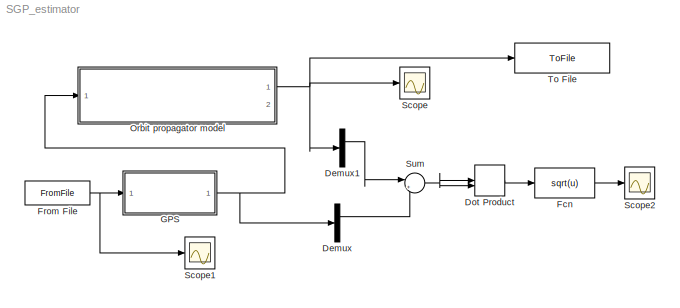
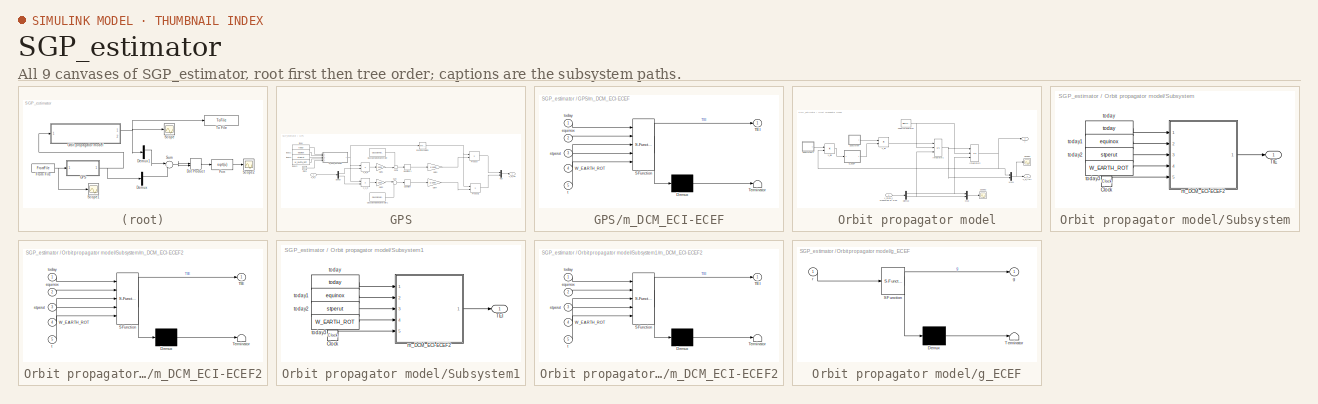
[diagram: thumbnail index - all 9 canvases of the model, root first then tree order]
MODEL SGP_estimator
KIND model
BLOCK [Demux] Demux
  DisplayOption = bar
  Outputs = 2
  Ports = [1, 2]
  SID = 123
BLOCK [Demux] Demux1
  DisplayOption = bar
  Outputs = 2
  Ports = [1, 2]
  SID = 124
BLOCK [DotProduct] Dot Product
  OutDataTypeStr = Inherit: Inherit via internal rule
  SID = 127
BLOCK [Fcn] Fcn
  Expr = sqrt(u)
  SID = 129
BLOCK [FromFile] From File
  FileName = SGP_120k
  SID = 20
  SampleTime = 0
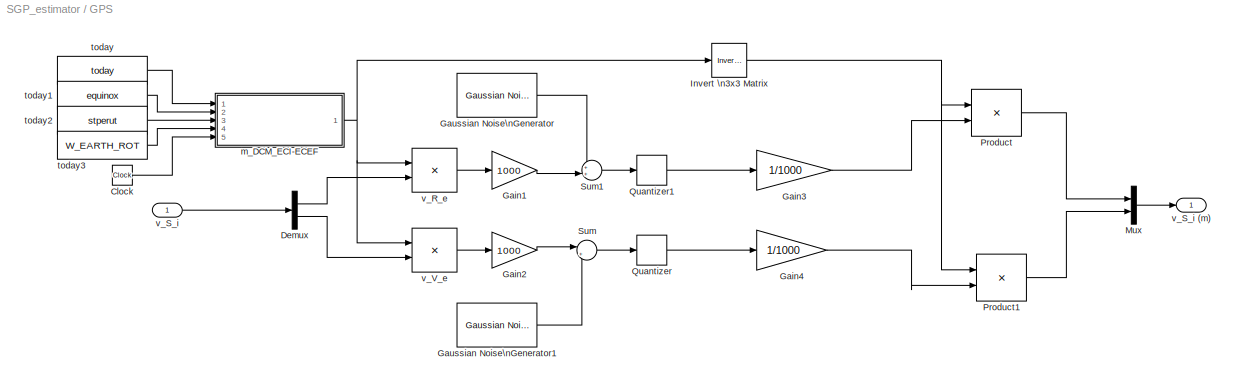
BLOCK [SubSystem] GPS
  FunctionWithSeparateData = off
  MaskHideContents = off
  MinAlgLoopOccurrences = off
  Opaque = off
  Ports = [1, 1]
  PropExecContextOutsideSubsystem = off
  RTWSystemCode = Auto
  RequestExecContextInheritance = off
  SID = 46
BLOCK [Clock] GPS/Clock
  SID = 48
BLOCK [Demux] GPS/Demux
  DisplayOption = bar
  Outputs = 2
  Ports = [1, 2]
  SID = 49
BLOCK [Gain] GPS/Gain1
  Gain = 1000
  OutDataTypeStr = Inherit: Inherit via internal rule
  ParamDataTypeStr = Inherit: Inherit via internal rule
  SID = 50
  SaturateOnIntegerOverflow = off
BLOCK [Gain] GPS/Gain2
  Gain = 1000
  OutDataTypeStr = Inherit: Inherit via internal rule
  ParamDataTypeStr = Inherit: Inherit via internal rule
  SID = 51
  SaturateOnIntegerOverflow = off
BLOCK [Gain] GPS/Gain3
  Gain = 1/1000
  OutDataTypeStr = Inherit: Inherit via internal rule
  ParamDataTypeStr = Inherit: Inherit via internal rule
  SID = 52
  SaturateOnIntegerOverflow = off
BLOCK [Gain] GPS/Gain4
  Gain = 1/1000
  OutDataTypeStr = Inherit: Inherit via internal rule
  ParamDataTypeStr = Inherit: Inherit via internal rule
  SID = 53
  SaturateOnIntegerOverflow = off
BLOCK [Reference] GPS/Gaussian Noise\nGenerator  REF=commnoisgen2/Gaussian Noise\nGenerator
  Ports = [0, 1]
  SID = 54
  SourceBlock = commnoisgen2/Gaussian Noise\nGenerator
  SourceType = Gaussian Noise Generator
  Ts = s_FRAME_SIZE
  d = s_x_GPS_X
  frameBased = off
  m = 0
  orient = off
  outDataType = double
  s = 41
  sampPerFrame = 1
BLOCK [Reference] GPS/Gaussian Noise\nGenerator1  REF=commnoisgen2/Gaussian Noise\nGenerator
  Ports = [0, 1]
  SID = 55
  SourceBlock = commnoisgen2/Gaussian Noise\nGenerator
  SourceType = Gaussian Noise Generator
  Ts = s_FRAME_SIZE
  d = s_x_GPS_V
  frameBased = off
  m = 0
  orient = off
  outDataType = double
  s = 24
  sampPerFrame = 1
BLOCK [Reference] GPS/Invert \n3x3 Matrix  REF=aerolibutil/Invert \n3x3 Matrix
  Ports = [1, 1]
  SID = 56
  SourceBlock = aerolibutil/Invert \n3x3 Matrix
  SourceType = Invert 3x3 Matrix
BLOCK [Mux] GPS/Mux
  DisplayOption = bar
  Inputs = 2
  Ports = [2, 1]
  SID = 57
BLOCK [Product] GPS/Product
  InputSameDT = off
  Multiplication = Matrix(*)
  OutDataTypeStr = Inherit: Inherit via internal rule
  Ports = [2, 1]
  SID = 58
  SaturateOnIntegerOverflow = off
BLOCK [Product] GPS/Product1
  InputSameDT = off
  Multiplication = Matrix(*)
  OutDataTypeStr = Inherit: Inherit via internal rule
  Ports = [2, 1]
  SID = 59
  SaturateOnIntegerOverflow = off
BLOCK [Quantizer] GPS/Quantizer
  QuantizationInterval = 1/(2^31)
  SID = 60
BLOCK [Quantizer] GPS/Quantizer1
  QuantizationInterval = 1/(2^31)
  SID = 61
BLOCK [Sum] GPS/Sum
  IconShape = round
  InputSameDT = off
  Inputs = |++
  OutDataTypeStr = Inherit: Inherit via internal rule
  Ports = [2, 1]
  SID = 62
  SaturateOnIntegerOverflow = off
BLOCK [Sum] GPS/Sum1
  IconShape = round
  InputSameDT = off
  Inputs = ++|
  OutDataTypeStr = Inherit: Inherit via internal rule
  Ports = [2, 1]
  SID = 63
  SaturateOnIntegerOverflow = off
BLOCK [SubSystem] GPS/m_DCM_ECI-ECEF
  ErrorFcn = Stateflow.Translate.translate
  FunctionWithSeparateData = off
  MaskHideContents = off
  MinAlgLoopOccurrences = off
  Opaque = off
  PermitHierarchicalResolution = ExplicitOnly
  Ports = [5, 1]
  PropExecContextOutsideSubsystem = off
  RTWSystemCode = Auto
  RequestExecContextInheritance = off
  SFBlockType = MATLAB Function
  SID = 64
  TreatAsAtomicUnit = on
BLOCK [Demux] GPS/m_DCM_ECI-ECEF/ Demux 
  Outputs = 1
  Ports = [1, 1]
  SID = 64::15
BLOCK [S-Function] GPS/m_DCM_ECI-ECEF/ SFunction 
  EnableBusSupport = on
  FunctionName = sf_sfun
  PortCounts = [5 2]
  Ports = [5, 2]
  SID = 64::14
  Tag = Stateflow S-Function SGP_estimator 56
BLOCK [Terminator] GPS/m_DCM_ECI-ECEF/ Terminator 
  SID = 64::16
BLOCK [Outport] GPS/m_DCM_ECI-ECEF/TEI
  IconDisplay = Port number
  SID = 64::9
BLOCK [Inport] GPS/m_DCM_ECI-ECEF/W_EARTH_ROT
  IconDisplay = Port number
  Port = 4
  SID = 64::4
BLOCK [Inport] GPS/m_DCM_ECI-ECEF/equinox
  IconDisplay = Port number
  Port = 2
  SID = 64::2
BLOCK [Inport] GPS/m_DCM_ECI-ECEF/stperut
  IconDisplay = Port number
  Port = 3
  SID = 64::3
BLOCK [Inport] GPS/m_DCM_ECI-ECEF/t
  IconDisplay = Port number
  Port = 5
  SID = 64::5
BLOCK [Inport] GPS/m_DCM_ECI-ECEF/today
  IconDisplay = Port number
  SID = 64::1
BLOCK [Constant] GPS/today
  SID = 65
  Value = today
BLOCK [Constant] GPS/today1
  SID = 66
  Value = equinox
BLOCK [Constant] GPS/today2
  SID = 67
  Value = stperut
BLOCK [Constant] GPS/today3
  SID = 68
  Value = W_EARTH_ROT
BLOCK [Product] GPS/v_R_e
  InputSameDT = off
  Multiplication = Matrix(*)
  OutDataTypeStr = Inherit: Inherit via internal rule
  Ports = [2, 1]
  SID = 69
  SaturateOnIntegerOverflow = off
BLOCK [Inport] GPS/v_S_i
  IconDisplay = Port number
  SID = 47
BLOCK [Outport] GPS/v_S_i (m)
  IconDisplay = Port number
  SID = 71
BLOCK [Product] GPS/v_V_e
  InputSameDT = off
  Multiplication = Matrix(*)
  OutDataTypeStr = Inherit: Inherit via internal rule
  Ports = [2, 1]
  SID = 70
  SaturateOnIntegerOverflow = off
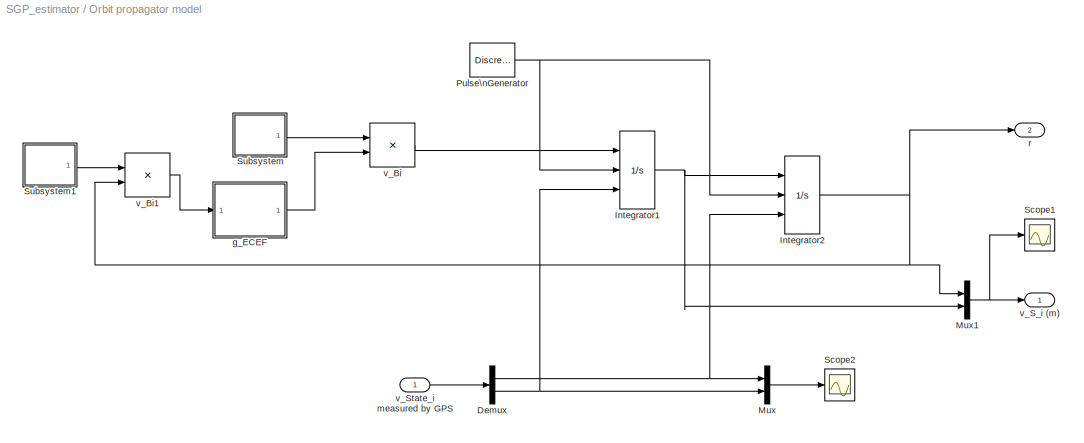
BLOCK [SubSystem] Orbit propagator model
  FunctionWithSeparateData = off
  MaskHideContents = off
  MinAlgLoopOccurrences = off
  Opaque = off
  Ports = [1, 2]
  PropExecContextOutsideSubsystem = off
  RTWSystemCode = Auto
  RequestExecContextInheritance = off
  SID = 21
BLOCK [Demux] Orbit propagator model/Demux
  DisplayOption = bar
  Outputs = 2
  Ports = [1, 2]
  SID = 23
BLOCK [Integrator] Orbit propagator model/Integrator1
  ExternalReset = rising
  InitialConditionSource = external
  Ports = [3, 1]
  SID = 26
BLOCK [Integrator] Orbit propagator model/Integrator2
  ExternalReset = rising
  InitialConditionSource = external
  Ports = [3, 1]
  SID = 27
BLOCK [Mux] Orbit propagator model/Mux
  DisplayOption = bar
  Inputs = 2
  Ports = [2, 1]
  SID = 29
BLOCK [Mux] Orbit propagator model/Mux1
  DisplayOption = bar
  Inputs = 2
  Ports = [2, 1]
  SID = 30
BLOCK [DiscretePulseGenerator] Orbit propagator model/Pulse\nGenerator
  Period = t_reset
  Ports = [0, 1]
  PulseType = Time based
  PulseWidth = 50
  SID = 32
BLOCK [Scope] Orbit propagator model/Scope1
  DataFormat = StructureWithTime
  Floating = off
  LimitDataPoints = off
  NumInputPorts = 1
  Ports = [1]
  SID = 33
  SampleInput = on
  SaveName = ScopeData26
  ShowLegends = off
  ZoomMode = xonly
BLOCK [Scope] Orbit propagator model/Scope2
  DataFormat = StructureWithTime
  Floating = off
  LimitDataPoints = off
  NumInputPorts = 1
  Ports = [1]
  SID = 121
  SampleInput = on
  SaveName = ScopeData4
  ShowLegends = off
  ZoomMode = xonly
BLOCK [SubSystem] Orbit propagator model/Subsystem
  FunctionWithSeparateData = off
  MaskHideContents = off
  MinAlgLoopOccurrences = off
  Opaque = off
  Ports = [0, 1]
  PropExecContextOutsideSubsystem = off
  RTWSystemCode = Auto
  RequestExecContextInheritance = off
  SID = 80
BLOCK [Clock] Orbit propagator model/Subsystem/Clock
  SID = 81
BLOCK [Outport] Orbit propagator model/Subsystem/TIE
  IconDisplay = Port number
  SID = 87
BLOCK [SubSystem] Orbit propagator model/Subsystem/m_DCM_ECI-ECEF2
  ErrorFcn = Stateflow.Translate.translate
  FunctionWithSeparateData = off
  MaskHideContents = off
  MinAlgLoopOccurrences = off
  Opaque = off
  PermitHierarchicalResolution = ExplicitOnly
  Ports = [5, 1]
  PropExecContextOutsideSubsystem = off
  RTWSystemCode = Auto
  RequestExecContextInheritance = off
  SFBlockType = MATLAB Function
  SID = 82
  TreatAsAtomicUnit = on
BLOCK [Demux] Orbit propagator model/Subsystem/m_DCM_ECI-ECEF2/ Demux 
  Outputs = 1
  Ports = [1, 1]
  SID = 82::15
BLOCK [S-Function] Orbit propagator model/Subsystem/m_DCM_ECI-ECEF2/ SFunction 
  EnableBusSupport = on
  FunctionName = sf_sfun
  PortCounts = [5 2]
  Ports = [5, 2]
  SID = 82::14
  Tag = Stateflow S-Function SGP_estimator 14
BLOCK [Terminator] Orbit propagator model/Subsystem/m_DCM_ECI-ECEF2/ Terminator 
  SID = 82::16
BLOCK [Outport] Orbit propagator model/Subsystem/m_DCM_ECI-ECEF2/TIE
  IconDisplay = Port number
  SID = 82::9
BLOCK [Inport] Orbit propagator model/Subsystem/m_DCM_ECI-ECEF2/W_EARTH_ROT
  IconDisplay = Port number
  Port = 4
  SID = 82::4
BLOCK [Inport] Orbit propagator model/Subsystem/m_DCM_ECI-ECEF2/equinox
  IconDisplay = Port number
  Port = 2
  SID = 82::2
BLOCK [Inport] Orbit propagator model/Subsystem/m_DCM_ECI-ECEF2/stperut
  IconDisplay = Port number
  Port = 3
  SID = 82::3
BLOCK [Inport] Orbit propagator model/Subsystem/m_DCM_ECI-ECEF2/t
  IconDisplay = Port number
  Port = 5
  SID = 82::5
BLOCK [Inport] Orbit propagator model/Subsystem/m_DCM_ECI-ECEF2/today
  IconDisplay = Port number
  SID = 82::1
BLOCK [Constant] Orbit propagator model/Subsystem/today
  SID = 83
  Value = today
BLOCK [Constant] Orbit propagator model/Subsystem/today1
  SID = 84
  Value = equinox
BLOCK [Constant] Orbit propagator model/Subsystem/today2
  SID = 85
  Value = stperut
BLOCK [Constant] Orbit propagator model/Subsystem/today3
  SID = 86
  Value = W_EARTH_ROT
BLOCK [SubSystem] Orbit propagator model/Subsystem1
  FunctionWithSeparateData = off
  MaskHideContents = off
  MinAlgLoopOccurrences = off
  Opaque = off
  Ports = [0, 1]
  PropExecContextOutsideSubsystem = off
  RTWSystemCode = Auto
  RequestExecContextInheritance = off
  SID = 98
BLOCK [Clock] Orbit propagator model/Subsystem1/Clock
  SID = 99
BLOCK [Outport] Orbit propagator model/Subsystem1/TEI
  IconDisplay = Port number
  SID = 105
BLOCK [SubSystem] Orbit propagator model/Subsystem1/m_DCM_ECI-ECEF2
  ErrorFcn = Stateflow.Translate.translate
  FunctionWithSeparateData = off
  MaskHideContents = off
  MinAlgLoopOccurrences = off
  Opaque = off
  PermitHierarchicalResolution = ExplicitOnly
  Ports = [5, 1]
  PropExecContextOutsideSubsystem = off
  RTWSystemCode = Auto
  RequestExecContextInheritance = off
  SFBlockType = MATLAB Function
  SID = 100
  TreatAsAtomicUnit = on
BLOCK [Demux] Orbit propagator model/Subsystem1/m_DCM_ECI-ECEF2/ Demux 
  Outputs = 1
  Ports = [1, 1]
  SID = 100::15
BLOCK [S-Function] Orbit propagator model/Subsystem1/m_DCM_ECI-ECEF2/ SFunction 
  EnableBusSupport = on
  FunctionName = sf_sfun
  PortCounts = [5 2]
  Ports = [5, 2]
  SID = 100::14
  Tag = Stateflow S-Function SGP_estimator 1
BLOCK [Terminator] Orbit propagator model/Subsystem1/m_DCM_ECI-ECEF2/ Terminator 
  SID = 100::16
BLOCK [Outport] Orbit propagator model/Subsystem1/m_DCM_ECI-ECEF2/TEI
  IconDisplay = Port number
  SID = 100::9
BLOCK [Inport] Orbit propagator model/Subsystem1/m_DCM_ECI-ECEF2/W_EARTH_ROT
  IconDisplay = Port number
  Port = 4
  SID = 100::4
BLOCK [Inport] Orbit propagator model/Subsystem1/m_DCM_ECI-ECEF2/equinox
  IconDisplay = Port number
  Port = 2
  SID = 100::2
BLOCK [Inport] Orbit propagator model/Subsystem1/m_DCM_ECI-ECEF2/stperut
  IconDisplay = Port number
  Port = 3
  SID = 100::3
BLOCK [Inport] Orbit propagator model/Subsystem1/m_DCM_ECI-ECEF2/t
  IconDisplay = Port number
  Port = 5
  SID = 100::5
BLOCK [Inport] Orbit propagator model/Subsystem1/m_DCM_ECI-ECEF2/today
  IconDisplay = Port number
  SID = 100::1
BLOCK [Constant] Orbit propagator model/Subsystem1/today
  SID = 101
  Value = today
BLOCK [Constant] Orbit propagator model/Subsystem1/today1
  SID = 102
  Value = equinox
BLOCK [Constant] Orbit propagator model/Subsystem1/today2
  SID = 103
  Value = stperut
BLOCK [Constant] Orbit propagator model/Subsystem1/today3
  SID = 104
  Value = W_EARTH_ROT
BLOCK [SubSystem] Orbit propagator model/g_ECEF
  ErrorFcn = Stateflow.Translate.translate
  FunctionWithSeparateData = off
  MaskHideContents = off
  MinAlgLoopOccurrences = off
  Opaque = off
  PermitHierarchicalResolution = ExplicitOnly
  Ports = [1, 1]
  PropExecContextOutsideSubsystem = off
  RTWSystemCode = Auto
  RequestExecContextInheritance = off
  SFBlockType = MATLAB Function
  SID = 78
  TreatAsAtomicUnit = on
BLOCK [Demux] Orbit propagator model/g_ECEF/ Demux 
  Outputs = 1
  Ports = [1, 1]
  SID = 78::14
BLOCK [S-Function] Orbit propagator model/g_ECEF/ SFunction 
  EnableBusSupport = on
  FunctionName = sf_sfun
  Parameters = mu
  PortCounts = [1 2]
  Ports = [1, 2]
  SID = 78::13
  Tag = Stateflow S-Function SGP_estimator 2
BLOCK [Terminator] Orbit propagator model/g_ECEF/ Terminator 
  SID = 78::15
BLOCK [Outport] Orbit propagator model/g_ECEF/g
  IconDisplay = Port number
  SID = 78::5
BLOCK [Inport] Orbit propagator model/g_ECEF/r
  IconDisplay = Port number
  SID = 78::1
BLOCK [Outport] Orbit propagator model/r
  IconDisplay = Port number
  Port = 2
  SID = 91
BLOCK [Product] Orbit propagator model/v_Bi
  InputSameDT = off
  Multiplication = Matrix(*)
  OutDataTypeStr = Inherit: Inherit via internal rule
  Ports = [2, 1]
  SID = 88
  SaturateOnIntegerOverflow = off
BLOCK [Product] Orbit propagator model/v_Bi1
  InputSameDT = off
  Multiplication = Matrix(*)
  OutDataTypeStr = Inherit: Inherit via internal rule
  Ports = [2, 1]
  SID = 97
  SaturateOnIntegerOverflow = off
BLOCK [Outport] Orbit propagator model/v_S_i (m)
  IconDisplay = Port number
  SID = 45
BLOCK [Inport] Orbit propagator model/v_State_i measured by GPS
  IconDisplay = Port number
  SID = 22
BLOCK [Scope] Scope
  DataFormat = StructureWithTime
  Floating = off
  LimitDataPoints = off
  NumInputPorts = 1
  Ports = [1]
  SID = 77
  SampleTime = 0
  ShowLegends = off
  YMax = 8e+006
  YMin = -4e+006
  ZoomMode = yonly
BLOCK [Scope] Scope1
  DataFormat = StructureWithTime
  Floating = off
  LimitDataPoints = off
  NumInputPorts = 1
  Ports = [1]
  SID = 89
  SampleTime = 0
  SaveName = ScopeData1
  ShowLegends = off
  ZoomMode = yonly
BLOCK [Scope] Scope2
  DataFormat = StructureWithTime
  Floating = off
  LimitDataPoints = off
  NumInputPorts = 1
  Ports = [1]
  SID = 126
  SampleTime = 0
  SaveName = ScopeData2
  ShowLegends = off
  YMax = 575000
  YMin = 50000
  ZoomMode = xonly
BLOCK [Sum] Sum
  IconShape = round
  InputSameDT = off
  Inputs = |+-
  OutDataTypeStr = Inherit: Inherit via internal rule
  Ports = [2, 1]
  SID = 125
  SaturateOnIntegerOverflow = off
BLOCK [ToFile] To File
  Filename = SGP_est_120k
  MatrixName = SGP_est_120k
  Ports = [1]
  SID = 130
LINE Demux1:1 -> Sum:1
LINE Demux:1 -> Sum:2
LINE Dot Product:1 -> Fcn:1
LINE Fcn:1 -> Scope2:1
NET From File:1 -> GPS:1, Scope1:1
LINE GPS/Clock:1 -> GPS/m_DCM_ECI-ECEF:5
LINE GPS/Demux:1 -> GPS/v_R_e:2
LINE GPS/Demux:2 -> GPS/v_V_e:2
LINE GPS/Gain1:1 -> GPS/Sum1:2
LINE GPS/Gain2:1 -> GPS/Sum:1
LINE GPS/Gain3:1 -> GPS/Product:2
LINE GPS/Gain4:1 -> GPS/Product1:2
LINE GPS/Gaussian Noise\nGenerator1:1 -> GPS/Sum:2
LINE GPS/Gaussian Noise\nGenerator:1 -> GPS/Sum1:1
NET GPS/Invert \n3x3 Matrix:1 -> GPS/Product1:1, GPS/Product:1
LINE GPS/Mux:1 -> GPS/v_S_i (m):1
LINE GPS/Product1:1 -> GPS/Mux:2
LINE GPS/Product:1 -> GPS/Mux:1
LINE GPS/Quantizer1:1 -> GPS/Gain3:1
LINE GPS/Quantizer:1 -> GPS/Gain4:1
LINE GPS/Sum1:1 -> GPS/Quantizer1:1
LINE GPS/Sum:1 -> GPS/Quantizer:1
LINE GPS/m_DCM_ECI-ECEF/ Demux :1 -> GPS/m_DCM_ECI-ECEF/ Terminator :1
LINE GPS/m_DCM_ECI-ECEF/ SFunction :1 -> GPS/m_DCM_ECI-ECEF/ Demux :1
LINE GPS/m_DCM_ECI-ECEF/ SFunction :2 -> GPS/m_DCM_ECI-ECEF/TEI:1
LINE GPS/m_DCM_ECI-ECEF/W_EARTH_ROT:1 -> GPS/m_DCM_ECI-ECEF/ SFunction :4
LINE GPS/m_DCM_ECI-ECEF/equinox:1 -> GPS/m_DCM_ECI-ECEF/ SFunction :2
LINE GPS/m_DCM_ECI-ECEF/stperut:1 -> GPS/m_DCM_ECI-ECEF/ SFunction :3
LINE GPS/m_DCM_ECI-ECEF/t:1 -> GPS/m_DCM_ECI-ECEF/ SFunction :5
LINE GPS/m_DCM_ECI-ECEF/today:1 -> GPS/m_DCM_ECI-ECEF/ SFunction :1
NET GPS/m_DCM_ECI-ECEF:1 -> GPS/Invert \n3x3 Matrix:1, GPS/v_R_e:1, GPS/v_V_e:1
LINE GPS/today1:1 -> GPS/m_DCM_ECI-ECEF:2
LINE GPS/today2:1 -> GPS/m_DCM_ECI-ECEF:3
LINE GPS/today3:1 -> GPS/m_DCM_ECI-ECEF:4
LINE GPS/today:1 -> GPS/m_DCM_ECI-ECEF:1
LINE GPS/v_R_e:1 -> GPS/Gain1:1
LINE GPS/v_S_i:1 -> GPS/Demux:1
LINE GPS/v_V_e:1 -> GPS/Gain2:1
NET GPS:1 -> Demux:1, Orbit propagator model:1
NET Orbit propagator model/Demux:1 -> Orbit propagator model/Integrator2:3, Orbit propagator model/Mux:1
NET Orbit propagator model/Demux:2 -> Orbit propagator model/Integrator1:3, Orbit propagator model/Mux:2
NET Orbit propagator model/Integrator1:1 -> Orbit propagator model/Integrator2:1, Orbit propagator model/Mux1:2
NET Orbit propagator model/Integrator2:1 -> Orbit propagator model/Mux1:1, Orbit propagator model/r:1, Orbit propagator model/v_Bi1:2
NET Orbit propagator model/Mux1:1 -> Orbit propagator model/Scope1:1, Orbit propagator model/v_S_i (m):1
LINE Orbit propagator model/Mux:1 -> Orbit propagator model/Scope2:1
NET Orbit propagator model/Pulse\nGenerator:1 -> Orbit propagator model/Integrator1:2, Orbit propagator model/Integrator2:2
LINE Orbit propagator model/Subsystem/Clock:1 -> Orbit propagator model/Subsystem/m_DCM_ECI-ECEF2:5
LINE Orbit propagator model/Subsystem/m_DCM_ECI-ECEF2/ Demux :1 -> Orbit propagator model/Subsystem/m_DCM_ECI-ECEF2/ Terminator :1
LINE Orbit propagator model/Subsystem/m_DCM_ECI-ECEF2/ SFunction :1 -> Orbit propagator model/Subsystem/m_DCM_ECI-ECEF2/ Demux :1
LINE Orbit propagator model/Subsystem/m_DCM_ECI-ECEF2/ SFunction :2 -> Orbit propagator model/Subsystem/m_DCM_ECI-ECEF2/TIE:1
LINE Orbit propagator model/Subsystem/m_DCM_ECI-ECEF2/W_EARTH_ROT:1 -> Orbit propagator model/Subsystem/m_DCM_ECI-ECEF2/ SFunction :4
LINE Orbit propagator model/Subsystem/m_DCM_ECI-ECEF2/equinox:1 -> Orbit propagator model/Subsystem/m_DCM_ECI-ECEF2/ SFunction :2
LINE Orbit propagator model/Subsystem/m_DCM_ECI-ECEF2/stperut:1 -> Orbit propagator model/Subsystem/m_DCM_ECI-ECEF2/ SFunction :3
LINE Orbit propagator model/Subsystem/m_DCM_ECI-ECEF2/t:1 -> Orbit propagator model/Subsystem/m_DCM_ECI-ECEF2/ SFunction :5
LINE Orbit propagator model/Subsystem/m_DCM_ECI-ECEF2/today:1 -> Orbit propagator model/Subsystem/m_DCM_ECI-ECEF2/ SFunction :1
LINE Orbit propagator model/Subsystem/m_DCM_ECI-ECEF2:1 -> Orbit propagator model/Subsystem/TIE:1
LINE Orbit propagator model/Subsystem/today1:1 -> Orbit propagator model/Subsystem/m_DCM_ECI-ECEF2:2
LINE Orbit propagator model/Subsystem/today2:1 -> Orbit propagator model/Subsystem/m_DCM_ECI-ECEF2:3
LINE Orbit propagator model/Subsystem/today3:1 -> Orbit propagator model/Subsystem/m_DCM_ECI-ECEF2:4
LINE Orbit propagator model/Subsystem/today:1 -> Orbit propagator model/Subsystem/m_DCM_ECI-ECEF2:1
LINE Orbit propagator model/Subsystem1/Clock:1 -> Orbit propagator model/Subsystem1/m_DCM_ECI-ECEF2:5
LINE Orbit propagator model/Subsystem1/m_DCM_ECI-ECEF2/ Demux :1 -> Orbit propagator model/Subsystem1/m_DCM_ECI-ECEF2/ Terminator :1
LINE Orbit propagator model/Subsystem1/m_DCM_ECI-ECEF2/ SFunction :1 -> Orbit propagator model/Subsystem1/m_DCM_ECI-ECEF2/ Demux :1
LINE Orbit propagator model/Subsystem1/m_DCM_ECI-ECEF2/ SFunction :2 -> Orbit propagator model/Subsystem1/m_DCM_ECI-ECEF2/TEI:1
LINE Orbit propagator model/Subsystem1/m_DCM_ECI-ECEF2/W_EARTH_ROT:1 -> Orbit propagator model/Subsystem1/m_DCM_ECI-ECEF2/ SFunction :4
LINE Orbit propagator model/Subsystem1/m_DCM_ECI-ECEF2/equinox:1 -> Orbit propagator model/Subsystem1/m_DCM_ECI-ECEF2/ SFunction :2
LINE Orbit propagator model/Subsystem1/m_DCM_ECI-ECEF2/stperut:1 -> Orbit propagator model/Subsystem1/m_DCM_ECI-ECEF2/ SFunction :3
LINE Orbit propagator model/Subsystem1/m_DCM_ECI-ECEF2/t:1 -> Orbit propagator model/Subsystem1/m_DCM_ECI-ECEF2/ SFunction :5
LINE Orbit propagator model/Subsystem1/m_DCM_ECI-ECEF2/today:1 -> Orbit propagator model/Subsystem1/m_DCM_ECI-ECEF2/ SFunction :1
LINE Orbit propagator model/Subsystem1/m_DCM_ECI-ECEF2:1 -> Orbit propagator model/Subsystem1/TEI:1
LINE Orbit propagator model/Subsystem1/today1:1 -> Orbit propagator model/Subsystem1/m_DCM_ECI-ECEF2:2
LINE Orbit propagator model/Subsystem1/today2:1 -> Orbit propagator model/Subsystem1/m_DCM_ECI-ECEF2:3
LINE Orbit propagator model/Subsystem1/today3:1 -> Orbit propagator model/Subsystem1/m_DCM_ECI-ECEF2:4
LINE Orbit propagator model/Subsystem1/today:1 -> Orbit propagator model/Subsystem1/m_DCM_ECI-ECEF2:1
LINE Orbit propagator model/Subsystem1:1 -> Orbit propagator model/v_Bi1:1
LINE Orbit propagator model/Subsystem:1 -> Orbit propagator model/v_Bi:1
LINE Orbit propagator model/g_ECEF/ Demux :1 -> Orbit propagator model/g_ECEF/ Terminator :1
LINE Orbit propagator model/g_ECEF/ SFunction :1 -> Orbit propagator model/g_ECEF/ Demux :1
LINE Orbit propagator model/g_ECEF/ SFunction :2 -> Orbit propagator model/g_ECEF/g:1
LINE Orbit propagator model/g_ECEF/r:1 -> Orbit propagator model/g_ECEF/ SFunction :1
LINE Orbit propagator model/g_ECEF:1 -> Orbit propagator model/v_Bi:2
LINE Orbit propagator model/v_Bi1:1 -> Orbit propagator model/g_ECEF:1
LINE Orbit propagator model/v_Bi:1 -> Orbit propagator model/Integrator1:1
LINE Orbit propagator model/v_State_i measured by GPS:1 -> Orbit propagator model/Demux:1
NET Orbit propagator model:1 -> Demux1:1, Scope:1, To File:1
NET Sum:1 -> Dot Product:1, Dot Product:2
note: NET lines group one-source signal fan-out (src -> all destinations, sorted); 1:1 wires keep LINE
CHART Orbit propagator model/Subsystem1/m_DCM_ECI-ECEF2 states=1 transitions=1
  STATE_LABEL 'eML_blk_kernel()'
CHART Orbit propagator model/g_ECEF states=1 transitions=1
  STATE_LABEL 'eML_blk_kernel()'
CHART Orbit propagator model/Subsystem/m_DCM_ECI-ECEF2 states=1 transitions=1
  STATE_LABEL 'eML_blk_kernel()'
CHART GPS/m_DCM_ECI-ECEF states=1 transitions=1
  STATE_LABEL 'eML_blk_kernel()'
